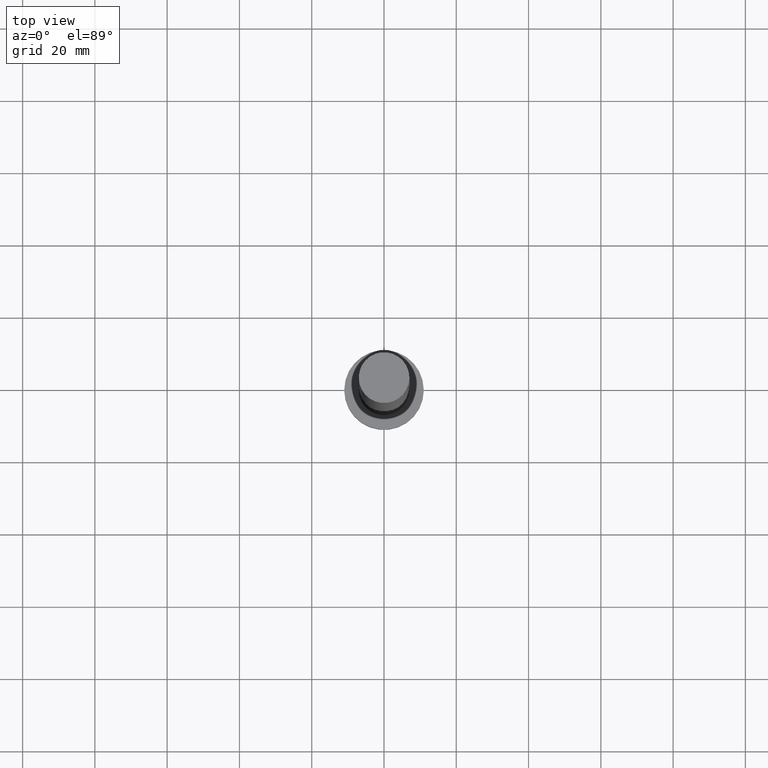
[diagram: clean part render]
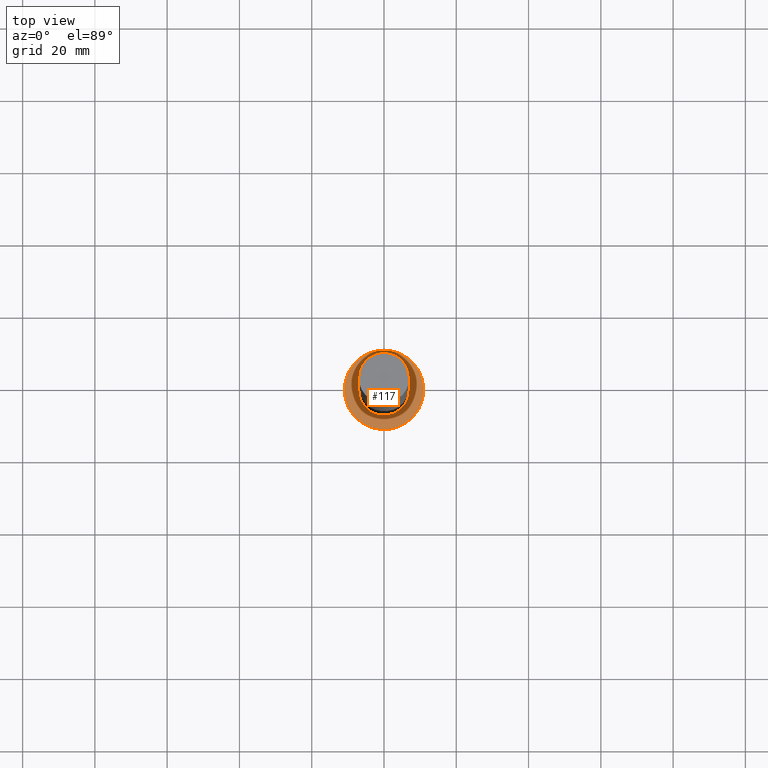
[diagram: same view with one face highlighted and labeled with its STEP entity id]
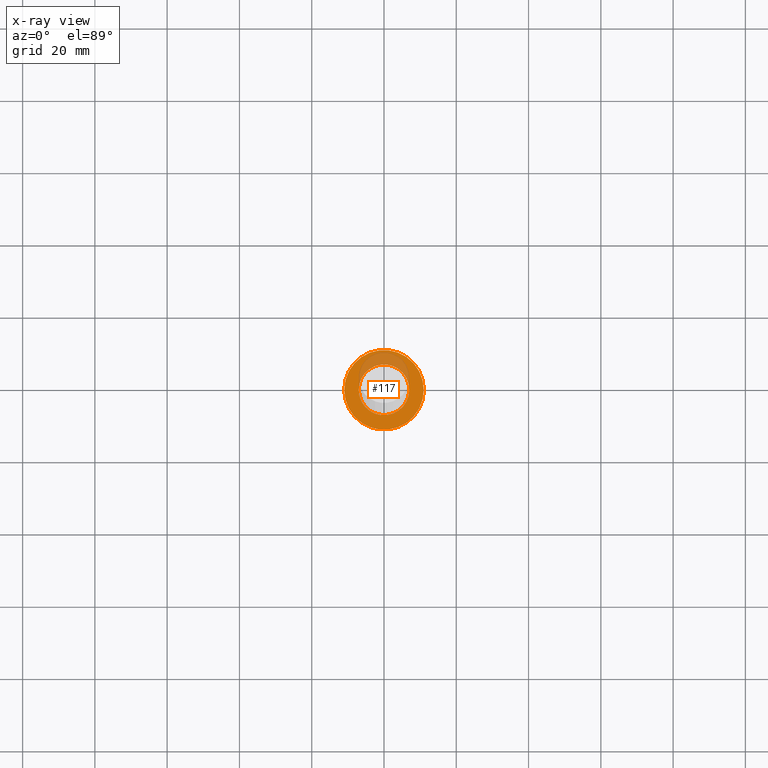
[diagram: x-ray of the same camera — body ghosted, the highlighted face saturated]
A machine part, top view. The second image highlights one B-rep face of the part: STEP entity #117.
The next image is the same camera in x-ray: the body ghosted, the highlighted face saturated — about 21% of this face is hidden behind the body in this view.
In plain terms, the highlighted planar face has unit normal (0, 0, 1).
Its self-contained STEP definition (entity closure, byte-faithful):
#3 = DIRECTION ( 'NONE',  ( 1.000000000000000000, 0.000000000000000000, -0.000000000000000000 ) ) ;
#4 = ORIENTED_EDGE ( 'NONE', *, *, #26, .F. ) ;
#5 = EDGE_CURVE ( 'NONE', #212, #217, #222, .T. ) ;
#7 = AXIS2_PLACEMENT_3D ( 'NONE', #255, #17, #3 ) ;
#11 = DIRECTION ( 'NONE',  ( 1.000000000000000000, 0.000000000000000000, 0.000000000000000000 ) ) ;
#17 = DIRECTION ( 'NONE',  ( 0.000000000000000000, 0.000000000000000000, 1.000000000000000000 ) ) ;
#19 = VERTEX_POINT ( 'NONE', #246 ) ;
#24 = EDGE_LOOP ( 'NONE', ( #4, #147 ) ) ;
#26 = EDGE_CURVE ( 'NONE', #19, #105, #126, .T. ) ;
#27 = DIRECTION ( 'NONE',  ( 1.000000000000000000, 0.000000000000000000, 0.000000000000000000 ) ) ;
#42 = DIRECTION ( 'NONE',  ( 0.000000000000000000, 0.000000000000000000, 1.000000000000000000 ) ) ;
#61 = DIRECTION ( 'NONE',  ( 0.000000000000000000, 0.000000000000000000, 1.000000000000000000 ) ) ;
#67 = AXIS2_PLACEMENT_3D ( 'NONE', #247, #224, #27 ) ;
#71 = CIRCLE ( 'NONE', #120, 7.000000000000000888 ) ;
#78 = CARTESIAN_POINT ( 'NONE',  ( 0.000000000000000000, 0.000000000000000000, 7.000000000000000000 ) ) ;
#83 = CARTESIAN_POINT ( 'NONE',  ( -11.00000000000000000, 0.000000000000000000, 7.000000000000000000 ) ) ;
#98 = DIRECTION ( 'NONE',  ( 1.000000000000000000, 0.000000000000000000, 0.000000000000000000 ) ) ;
#101 = DIRECTION ( 'NONE',  ( 0.000000000000000000, 0.000000000000000000, 1.000000000000000000 ) ) ;
#102 = FACE_BOUND ( 'NONE', #24, .T. ) ;
#105 = VERTEX_POINT ( 'NONE', #107 ) ;
#107 = CARTESIAN_POINT ( 'NONE',  ( 7.000000000000000888, 8.572527594031474176E-16, 7.000000000000000000 ) ) ;
#117 = ADVANCED_FACE ( 'NONE', ( #102, #183 ), #201, .T. ) ;
#119 = CIRCLE ( 'NONE', #223, 11.00000000000000000 ) ;
#120 = AXIS2_PLACEMENT_3D ( 'NONE', #159, #42, #11 ) ;
#126 = CIRCLE ( 'NONE', #141, 7.000000000000000888 ) ;
#141 = AXIS2_PLACEMENT_3D ( 'NONE', #188, #101, #186 ) ;
#147 = ORIENTED_EDGE ( 'NONE', *, *, #180, .F. ) ;
#159 = CARTESIAN_POINT ( 'NONE',  ( 0.000000000000000000, 0.000000000000000000, 7.000000000000000000 ) ) ;
#160 = ORIENTED_EDGE ( 'NONE', *, *, #5, .T. ) ;
#163 = CARTESIAN_POINT ( 'NONE',  ( 11.00000000000000000, 1.347111479062088405E-15, 7.000000000000000000 ) ) ;
#176 = EDGE_CURVE ( 'NONE', #217, #212, #119, .T. ) ;
#180 = EDGE_CURVE ( 'NONE', #105, #19, #71, .T. ) ;
#183 = FACE_OUTER_BOUND ( 'NONE', #202, .T. ) ;
#186 = DIRECTION ( 'NONE',  ( 1.000000000000000000, 0.000000000000000000, 0.000000000000000000 ) ) ;
#188 = CARTESIAN_POINT ( 'NONE',  ( 0.000000000000000000, 0.000000000000000000, 7.000000000000000000 ) ) ;
#201 = PLANE ( 'NONE',  #7 ) ;
#202 = EDGE_LOOP ( 'NONE', ( #160, #235 ) ) ;
#212 = VERTEX_POINT ( 'NONE', #83 ) ;
#217 = VERTEX_POINT ( 'NONE', #163 ) ;
#222 = CIRCLE ( 'NONE', #67, 11.00000000000000000 ) ;
#223 = AXIS2_PLACEMENT_3D ( 'NONE', #78, #61, #98 ) ;
#224 = DIRECTION ( 'NONE',  ( 0.000000000000000000, 0.000000000000000000, 1.000000000000000000 ) ) ;
#235 = ORIENTED_EDGE ( 'NONE', *, *, #176, .T. ) ;
#246 = CARTESIAN_POINT ( 'NONE',  ( -7.000000000000000888, 0.000000000000000000, 7.000000000000000000 ) ) ;
#247 = CARTESIAN_POINT ( 'NONE',  ( 0.000000000000000000, 0.000000000000000000, 7.000000000000000000 ) ) ;
#255 = CARTESIAN_POINT ( 'NONE',  ( 0.000000000000000000, 0.000000000000000000, 7.000000000000000000 ) ) ;